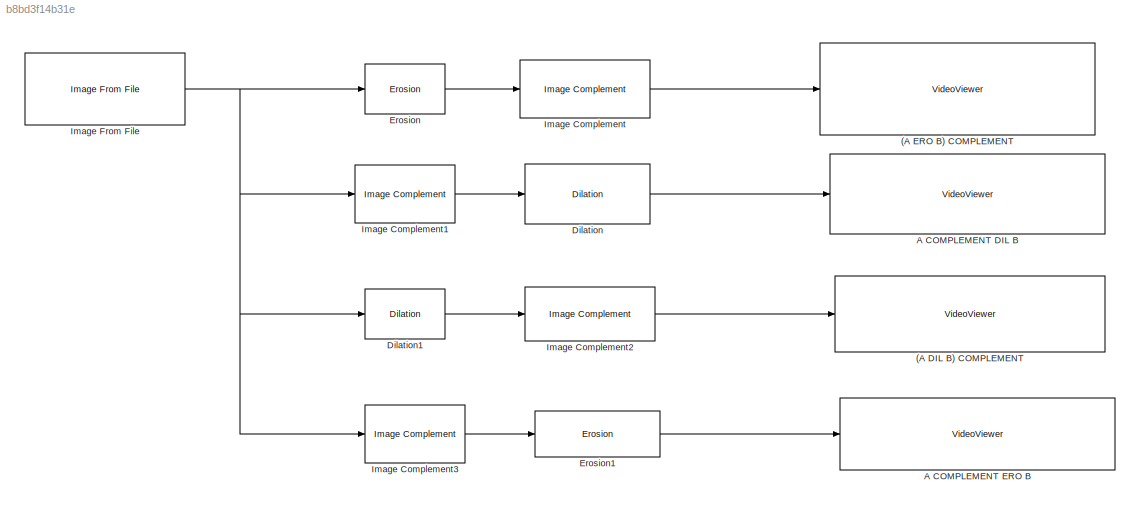
MODEL slx_b8bd3f14b31e
KIND model
CONFIG AbsTol = auto
CONFIG EnableMultiTasking = off
CONFIG FixedStep = auto
CONFIG MaxStep = auto
CONFIG MinStep = auto
CONFIG RelTol = 1e-3
CONFIG SampleTimeConstraint = Unconstrained
CONFIG Solver = VariableStepAuto
CONFIG SolverName = VariableStepAuto
CONFIG StartTime = 0.0
CONFIG StopTime = 10.0
BLOCK [VideoViewer] (A DIL B) COMPLEMENT
  FigPos = [160.2 678 417.6 304]
  Ports = [1]
  ScopeSpecificationString = vipscopes.VideoViewerScopeCfg('CurrentConfiguration', extmgr.ConfigurationSet(extmgr.Configuration('Core','General UI',true),extmgr.Configuration('Core','Source UI',true),extmgr.Configuration('Sources','WiredSimulink',true),extmgr.Configuration('Visuals','Video',true),extmgr.Configuration('Tools','Image Navigation Tools',true),extmgr.Configuration('Tools','Image Tool',true),extmgr.Configuration('T...<+79ch>
BLOCK [VideoViewer] (A ERO B) COMPLEMENT
  FigPos = [559 583 418 304]
  Ports = [1]
  ScopeSpecificationString = vipscopes.VideoViewerScopeCfg('CurrentConfiguration', extmgr.ConfigurationSet(extmgr.Configuration('Core','General UI',true),extmgr.Configuration('Core','Source UI',true),extmgr.Configuration('Sources','WiredSimulink',true),extmgr.Configuration('Visuals','Video',true),extmgr.Configuration('Tools','Image Navigation Tools',true),extmgr.Configuration('Tools','Image Tool',true),extmgr.Configuration('T...<+75ch>
BLOCK [VideoViewer] A COMPLEMENT DIL B
  FigPos = [495.4 872.4 417.6 304]
  Ports = [1]
  ScopeSpecificationString = vipscopes.VideoViewerScopeCfg('CurrentConfiguration', extmgr.ConfigurationSet(extmgr.Configuration('Core','General UI',true),extmgr.Configuration('Core','Source UI',true),extmgr.Configuration('Sources','WiredSimulink',true),extmgr.Configuration('Visuals','Video',true),extmgr.Configuration('Tools','Image Navigation Tools',true),extmgr.Configuration('Tools','Image Tool',true),extmgr.Configuration('T...<+80ch>
BLOCK [VideoViewer] A COMPLEMENT ERO B
  FigPos = [945 641.2 417.6 304]
  Ports = [1]
  ScopeSpecificationString = vipscopes.VideoViewerScopeCfg('CurrentConfiguration', extmgr.ConfigurationSet(extmgr.Configuration('Core','General UI',true),extmgr.Configuration('Core','Source UI',true),extmgr.Configuration('Sources','WiredSimulink',true),extmgr.Configuration('Visuals','Video',true),extmgr.Configuration('Tools','Image Navigation Tools',true),extmgr.Configuration('Tools','Image Tool',true),extmgr.Configuration('T...<+79ch>
BLOCK [Reference] Dilation  REF=visionmorphops/Dilation
  Ports = [1, 1]
  SourceBlock = visionmorphops/Dilation
  SourceProductBaseCode = VP
  SourceProductName = Computer Vision Toolbox
  SourceType = Dilation
BLOCK [Reference] Dilation1  REF=visionmorphops/Dilation
  Ports = [1, 1]
  SourceBlock = visionmorphops/Dilation
  SourceProductBaseCode = VP
  SourceProductName = Computer Vision Toolbox
  SourceType = Dilation
BLOCK [Reference] Erosion  REF=visionmorphops/Erosion
  Ports = [1, 1]
  SourceBlock = visionmorphops/Erosion
  SourceProductBaseCode = VP
  SourceProductName = Computer Vision Toolbox
  SourceType = Erosion
BLOCK [Reference] Erosion1  REF=visionmorphops/Erosion
  Ports = [1, 1]
  SourceBlock = visionmorphops/Erosion
  SourceProductBaseCode = VP
  SourceProductName = Computer Vision Toolbox
  SourceType = Erosion
BLOCK [Reference] Image Complement  REF=visionconversions/Image Complement
  Ports = [1, 1]
  SourceBlock = visionconversions/Image Complement
  SourceProductBaseCode = VP
  SourceProductName = Computer Vision Toolbox
  SourceType = Image Complement
BLOCK [Reference] Image Complement1  REF=visionconversions/Image Complement
  Ports = [1, 1]
  SourceBlock = visionconversions/Image Complement
  SourceProductBaseCode = VP
  SourceProductName = Computer Vision Toolbox
  SourceType = Image Complement
BLOCK [Reference] Image Complement2  REF=visionconversions/Image Complement
  Ports = [1, 1]
  SourceBlock = visionconversions/Image Complement
  SourceProductBaseCode = VP
  SourceProductName = Computer Vision Toolbox
  SourceType = Image Complement
BLOCK [Reference] Image Complement3  REF=visionconversions/Image Complement
  Ports = [1, 1]
  SourceBlock = visionconversions/Image Complement
  SourceProductBaseCode = VP
  SourceProductName = Computer Vision Toolbox
  SourceType = Image Complement
BLOCK [Reference] Image From File  REF=visionsources/Image From File
  Ports = [0, 1]
  SourceBlock = visionsources/Image From File
  SourceProductBaseCode = VP
  SourceProductName = Computer Vision Toolbox
  SourceType = Image From File
  Tag = vipblks_nd
LINE Dilation1:1 -> Image Complement2:1
LINE Dilation:1 -> A COMPLEMENT DIL B:1
LINE Erosion1:1 -> A COMPLEMENT ERO B:1
LINE Erosion:1 -> Image Complement:1
LINE Image Complement1:1 -> Dilation:1
LINE Image Complement2:1 -> (A DIL B) COMPLEMENT:1
LINE Image Complement3:1 -> Erosion1:1
LINE Image Complement:1 -> (A ERO B) COMPLEMENT:1
NET Image From File:1 -> Dilation1:1, Erosion:1, Image Complement1:1, Image Complement3:1
note: NET lines group one-source signal fan-out (src -> all destinations, sorted); 1:1 wires keep LINE
